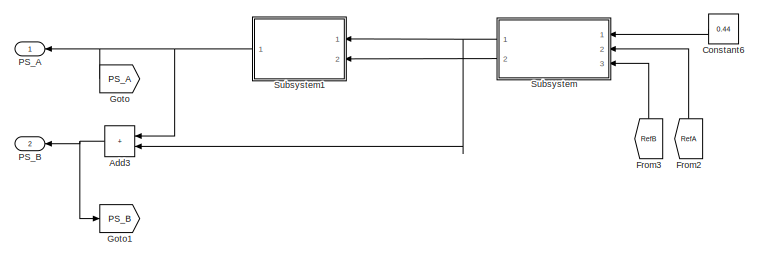
[diagram: root canvas - part 1/5, top center region]
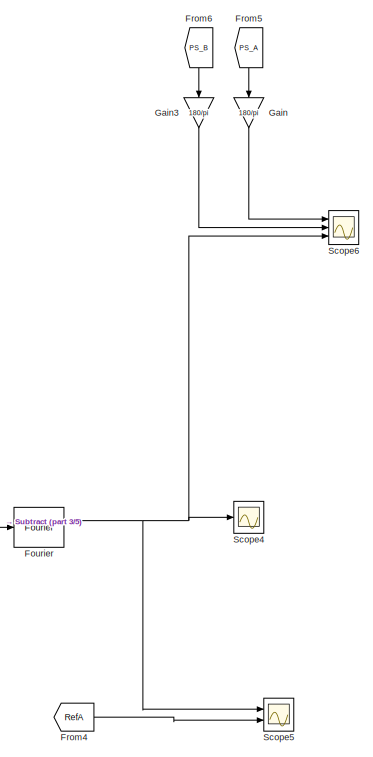
[diagram: root canvas - part 2/5, middle right region]
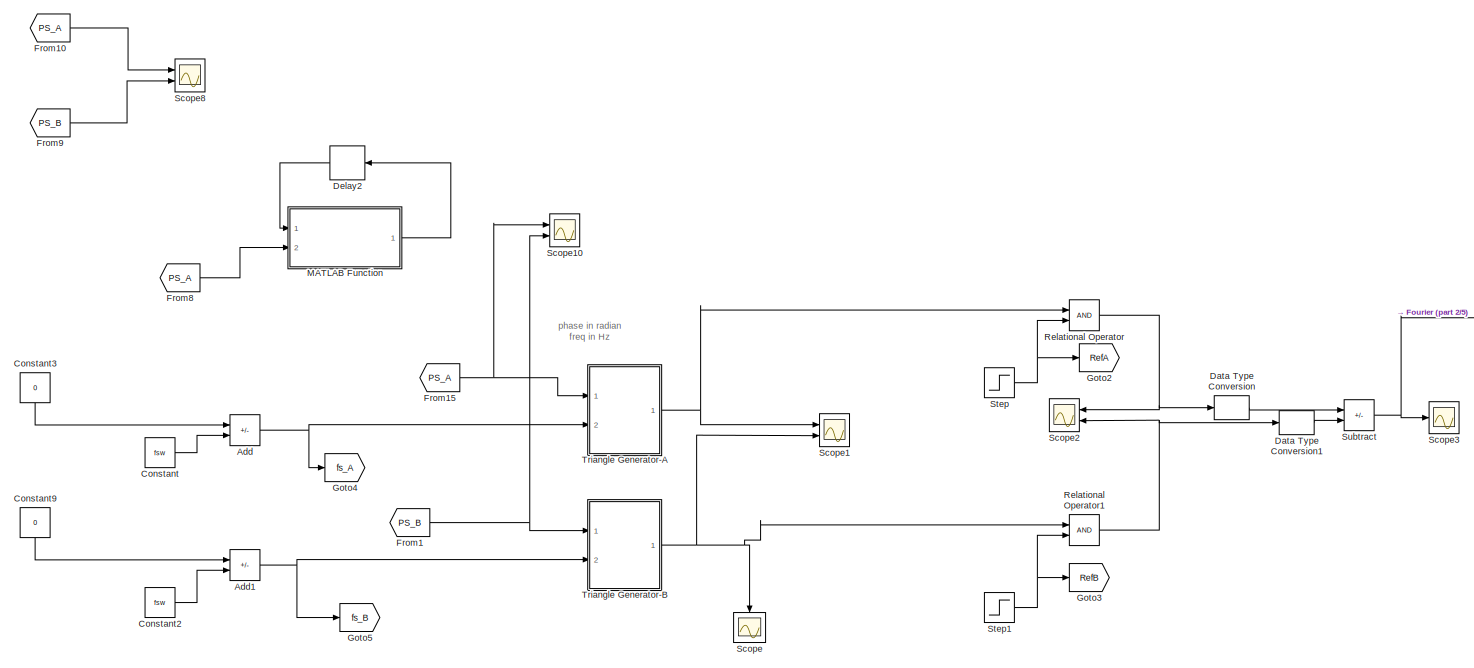
[diagram: root canvas - part 3/5, central region]
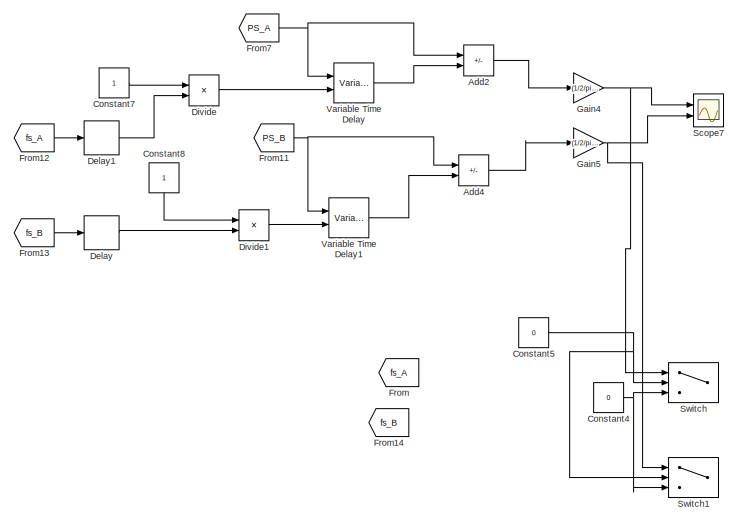
[diagram: root canvas - part 4/5, middle left region]
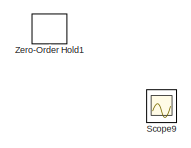
[diagram: root canvas - part 5/5, bottom center region]
MODEL slx_c30bab860ed8
KIND model
CONFIG AbsTol = auto
CONFIG EnableMultiTasking = off
CONFIG FixedStep = auto
CONFIG InitFcn = fsw=10e3;\nma=0.50;\nffund=100;
CONFIG MaxStep = 1e-7
CONFIG MinStep = auto
CONFIG RelTol = 1e-6
CONFIG SampleTimeConstraint = Unconstrained
CONFIG SolverName = VariableStepAuto
CONFIG StartTime = 0.0
CONFIG StopTime = 20/fsw
BLOCK [Sum] Add
  IconShape = rectangular
  Inputs = -+
  Ports = [2, 1]
BLOCK [Sum] Add1
  IconShape = rectangular
  Inputs = -+
  Ports = [2, 1]
BLOCK [Sum] Add2
  Commented = on
  IconShape = rectangular
  Inputs = +-
  Ports = [2, 1]
BLOCK [Sum] Add3
  IconShape = rectangular
  NameLocation = top
  Ports = [2, 1]
BLOCK [Sum] Add4
  Commented = on
  IconShape = rectangular
  Inputs = +-
  Ports = [2, 1]
BLOCK [Constant] Constant
  Value = fsw
BLOCK [Constant] Constant2
  Value = fsw
BLOCK [Constant] Constant3
  NameLocation = left
  Value = 0
BLOCK [Constant] Constant4
  Commented = on
  Value = 0
BLOCK [Constant] Constant5
  Commented = on
  Value = 0
BLOCK [Constant] Constant6
  NameLocation = top
  Value = 0.44
BLOCK [Constant] Constant7
  Commented = on
BLOCK [Constant] Constant8
  Commented = on
  NameLocation = left
BLOCK [Constant] Constant9
  NameLocation = left
  Value = 0
BLOCK [DataTypeConversion] Data Type Conversion
  RndMeth = Floor
  SaturateOnIntegerOverflow = off
BLOCK [DataTypeConversion] Data Type Conversion1
  RndMeth = Floor
  SaturateOnIntegerOverflow = off
BLOCK [Delay] Delay
  Commented = on
  InputPortMap = u0
  Ports = [1, 1]
BLOCK [Delay] Delay1
  Commented = on
  InputPortMap = u0
  Ports = [1, 1]
BLOCK [Delay] Delay2
  Commented = on
  DelayLength = 1
  InputPortMap = u0
  NameLocation = top
  Ports = [1, 1]
BLOCK [Product] Divide
  Commented = on
  Inputs = */
  Ports = [2, 1]
BLOCK [Product] Divide1
  Commented = on
  Inputs = */
  Ports = [2, 1]
BLOCK [Reference] Fourier  REF=spsFourierLib/Fourier
  Ports = [1, 2]
  SourceBlock = spsFourierLib/Fourier
  SourceProductBaseCode = PS
  SourceType = Fourier
BLOCK [From] From
  GotoTag = fs_A
BLOCK [From] From1
  GotoTag = PS_B
BLOCK [From] From10
  GotoTag = PS_A
BLOCK [From] From11
  Commented = on
  GotoTag = PS_B
BLOCK [From] From12
  Commented = on
  GotoTag = fs_A
BLOCK [From] From13
  Commented = on
  GotoTag = fs_B
BLOCK [From] From14
  GotoTag = fs_B
BLOCK [From] From15
  GotoTag = PS_A
BLOCK [From] From2
  GotoTag = RefA
  NameLocation = right
BLOCK [From] From3
  GotoTag = RefB
  NameLocation = right
BLOCK [From] From4
  GotoTag = RefA
BLOCK [From] From5
  GotoTag = PS_A
  NameLocation = left
BLOCK [From] From6
  GotoTag = PS_B
  NameLocation = left
BLOCK [From] From7
  Commented = on
  GotoTag = PS_A
BLOCK [From] From8
  Commented = on
  GotoTag = PS_A
BLOCK [From] From9
  GotoTag = PS_B
BLOCK [Gain] Gain
  Gain = 180/pi
  NameLocation = left
BLOCK [Gain] Gain3
  Gain = 180/pi
  NameLocation = left
BLOCK [Gain] Gain4
  Commented = on
  Gain = (1/2/pi)*fsw
BLOCK [Gain] Gain5
  Commented = on
  Gain = (1/2/pi)*fsw
BLOCK [Goto] Goto
  GotoTag = PS_A
BLOCK [Goto] Goto1
  GotoTag = PS_B
BLOCK [Goto] Goto2
  GotoTag = RefA
BLOCK [Goto] Goto3
  GotoTag = RefB
BLOCK [Goto] Goto4
  GotoTag = fs_A
BLOCK [Goto] Goto5
  GotoTag = fs_B
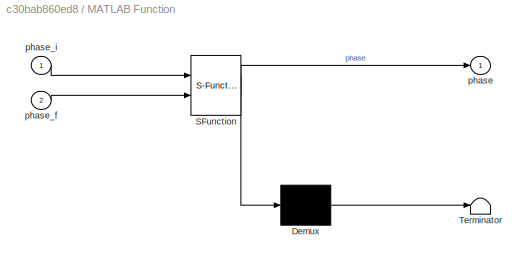
BLOCK [SubSystem] MATLAB Function
  Commented = on
  ErrorFcn = Stateflow.Translate.translate
  PermitHierarchicalResolution = ExplicitOnly
  Ports = [2, 1]
  RequestExecContextInheritance = off
  SFBlockType = MATLAB Function
  TreatAsAtomicUnit = on
BLOCK [Demux] MATLAB Function/ Demux 
  Outputs = 1
  Ports = [1, 1]
BLOCK [S-Function] MATLAB Function/ SFunction 
  EnableBusSupport = on
  FunctionName = sf_sfun
  PortCounts = [2 2]
  Ports = [2, 2]
  SFcnIsStateOwnerBlock = off
  SFunctionDeploymentMode = off
  Tag = Stateflow S-Function 2
BLOCK [Terminator] MATLAB Function/ Terminator 
BLOCK [Outport] MATLAB Function/phase
BLOCK [Inport] MATLAB Function/phase_f
  Port = 2
BLOCK [Inport] MATLAB Function/phase_i
BLOCK [Outport] PS_A
  NameLocation = top
BLOCK [Outport] PS_B
  NameLocation = top
  Port = 2
BLOCK [RelationalOperator] Relational Operator
  InputSameDT = off
  OutDataTypeStr = boolean
  Ports = [2, 1]
  RndMeth = Simplest
BLOCK [RelationalOperator] Relational Operator1
  InputSameDT = off
  OutDataTypeStr = boolean
  Ports = [2, 1]
  RndMeth = Simplest
BLOCK [Scope] Scope
  Floating = off
  NameLocation = left
  NumInputPorts = 1
  Ports = [1]
  ScopeSpecificationString = Simulink.scopes.TimeScopeBlockCfg('CurrentConfiguration', extmgr.ConfigurationSet(extmgr.Configuration('Core','General UI',true),extmgr.Configuration('Core','Source UI',true),extmgr.Configuration('Sources','WiredSimulink',true,'DataLoggingVariableName','ScopeData1'),extmgr.Configuration('Visuals','Time Domain',true,'SerializedDisplays',{struct('MinYLimReal','-1.24943','MaxYLimReal','1.24994','YLab...<+1479ch>
BLOCK [Scope] Scope1
  Floating = off
  NumInputPorts = 2
  Ports = [2]
  ScopeSpecificationString = Simulink.scopes.TimeScopeBlockCfg('CurrentConfiguration', extmgr.ConfigurationSet(extmgr.Configuration('Core','General UI',true),extmgr.Configuration('Core','Source UI',true),extmgr.Configuration('Sources','WiredSimulink',true,'DataLoggingVariableName','ScopeData2'),extmgr.Configuration('Visuals','Time Domain',true,'SerializedDisplays',{struct('MinYLimReal','-1.24968','MaxYLimReal','1.24996','YLab...<+1502ch>
BLOCK [Scope] Scope10
  Floating = off
  NumInputPorts = 2
  Ports = [2]
  ScopeSpecificationString = Simulink.scopes.TimeScopeBlockCfg('CurrentConfiguration', extmgr.ConfigurationSet(extmgr.Configuration('Core','General UI',true),extmgr.Configuration('Core','Source UI',true),extmgr.Configuration('Sources','WiredSimulink',true,'DataLoggingVariableName','ScopeData4'),extmgr.Configuration('Visuals','Time Domain',true,'SerializedDisplays',{struct('MinYLimReal','0.68485','MaxYLimReal','2.45675','YLabe...<+1428ch>
BLOCK [Scope] Scope2
  Floating = off
  NameLocation = top
  NumInputPorts = 2
  Ports = [2]
  ScopeSpecificationString = Simulink.scopes.TimeScopeBlockCfg('CurrentConfiguration', extmgr.ConfigurationSet(extmgr.Configuration('Core','General UI',true),extmgr.Configuration('Core','Source UI',true),extmgr.Configuration('Sources','WiredSimulink',true,'DataLoggingVariableName','ScopeData3'),extmgr.Configuration('Visuals','Time Domain',true,'SerializedDisplays',{struct('MinYLimReal','-0.125','MaxYLimReal','1.125','YLabelRe...<+2096ch>
BLOCK [Scope] Scope3
  Floating = off
  NumInputPorts = 1
  Ports = [1]
  ScopeSpecificationString = Simulink.scopes.TimeScopeBlockCfg('CurrentConfiguration', extmgr.ConfigurationSet(extmgr.Configuration('Core','General UI',true),extmgr.Configuration('Core','Source UI',true),extmgr.Configuration('Sources','WiredSimulink',true,'DataLoggingVariableName','VAB','DataLogging',true),extmgr.Configuration('Visuals','Time Domain',true,'SerializedDisplays',{struct('MinYLimReal','-1.25','MaxYLimReal','1.25'...<+1454ch>
BLOCK [Scope] Scope4
  Floating = off
  NumInputPorts = 1
  Ports = [1]
  ScopeSpecificationString = Simulink.scopes.TimeScopeBlockCfg('CurrentConfiguration', extmgr.ConfigurationSet(extmgr.Configuration('Core','General UI',true),extmgr.Configuration('Core','Source UI',true),extmgr.Configuration('Sources','WiredSimulink',true,'DataLoggingVariableName','ScopeData5'),extmgr.Configuration('Visuals','Time Domain',true,'SerializedDisplays',{struct('MinYLimReal','-0.09192','MaxYLimReal','0.82728','YLab...<+1441ch>
BLOCK [Scope] Scope5
  Floating = off
  NumInputPorts = 2
  Ports = [2]
  ScopeSpecificationString = Simulink.scopes.TimeScopeBlockCfg('CurrentConfiguration', extmgr.ConfigurationSet(extmgr.Configuration('Core','General UI',true),extmgr.Configuration('Core','Source UI',true),extmgr.Configuration('Sources','WiredSimulink',true,'DataLoggingVariableName','ScopeData8'),extmgr.Configuration('Visuals','Time Domain',true,'SerializedDisplays',{struct('MinYLimReal','-0.09192','MaxYLimReal','0.82728','YLab...<+1375ch>
BLOCK [Scope] Scope6
  Floating = off
  NumInputPorts = 3
  Ports = [3]
  ScopeSpecificationString = Simulink.scopes.TimeScopeBlockCfg('CurrentConfiguration', extmgr.ConfigurationSet(extmgr.Configuration('Core','General UI',true),extmgr.Configuration('Core','Source UI',true),extmgr.Configuration('Sources','WiredSimulink',true,'DataLoggingVariableName','ScopeData9'),extmgr.Configuration('Visuals','Time Domain',true,'SerializedDisplays',{struct('MinYLimReal','60.36874','MaxYLimReal','61.37018','YLa...<+2795ch>
BLOCK [Scope] Scope7
  Commented = on
  Floating = off
  NumInputPorts = 2
  Ports = [2]
  ScopeSpecificationString = Simulink.scopes.TimeScopeBlockCfg('CurrentConfiguration', extmgr.ConfigurationSet(extmgr.Configuration('Core','General UI',true),extmgr.Configuration('Core','Source UI',true),extmgr.Configuration('Sources','WiredSimulink',true,'DataLoggingVariableName','ScopeData10'),extmgr.Configuration('Visuals','Time Domain',true,'SerializedDisplays',{struct('MinYLimReal','-1328.18519','MaxYLimReal','2700.15806...<+2073ch>
BLOCK [Scope] Scope8
  Floating = off
  NumInputPorts = 2
  Ports = [2]
  ScopeSpecificationString = Simulink.scopes.TimeScopeBlockCfg('CurrentConfiguration', extmgr.ConfigurationSet(extmgr.Configuration('Core','General UI',true),extmgr.Configuration('Core','Source UI',true),extmgr.Configuration('Sources','WiredSimulink',true,'DataLoggingVariableName','ScopeData11'),extmgr.Configuration('Visuals','Time Domain',true,'SerializedDisplays',{struct('MinYLimReal','0.68485','MaxYLimReal','2.45675','YLab...<+1375ch>
BLOCK [Scope] Scope9
  Floating = off
  NumInputPorts = 2
  Ports = [2]
  ScopeSpecificationString = Simulink.scopes.TimeScopeBlockCfg('CurrentConfiguration', extmgr.ConfigurationSet(extmgr.Configuration('Core','General UI',true),extmgr.Configuration('Core','Source UI',true),extmgr.Configuration('Sources','WiredSimulink',true,'DataLoggingVariableName','ScopeData12'),extmgr.Configuration('Visuals','Time Domain',true,'SerializedDisplays',{struct('MinYLimReal','7156.64628','MaxYLimReal','10953.50592...<+2182ch>
BLOCK [Step] Step
  After = 0.25
  Before = 0.5
  SampleTime = 0
  Time = 5/fsw
BLOCK [Step] Step1
  After = 0.5
  Before = 0.25
  SampleTime = 0
  Time = 5/fsw
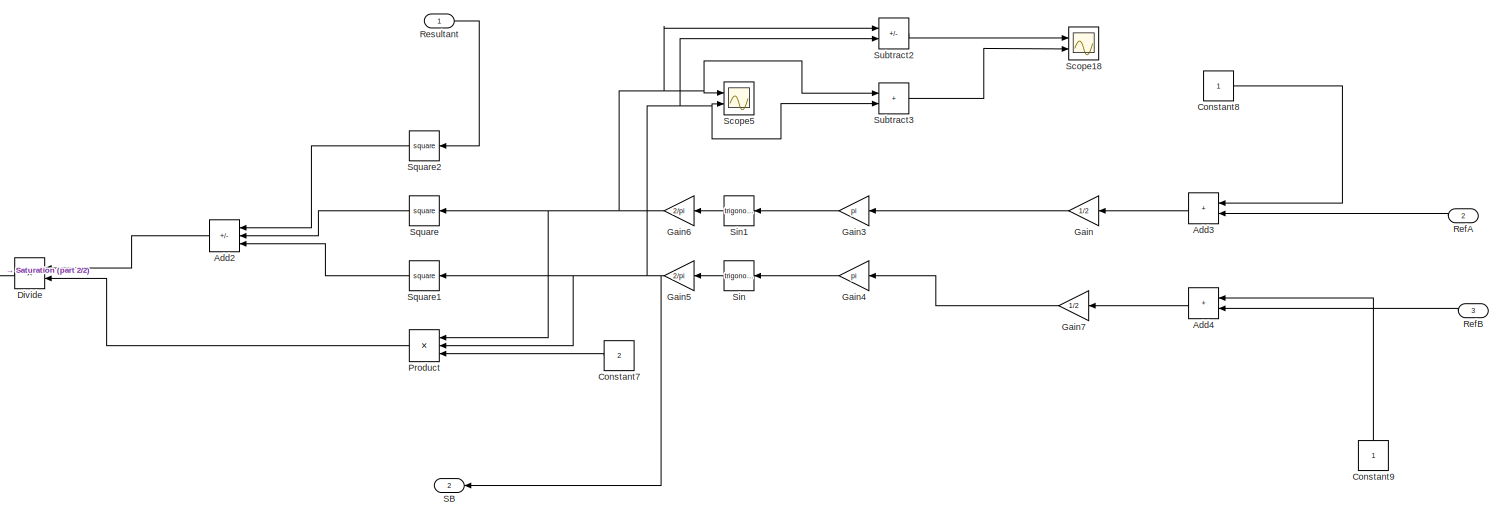
[diagram: Subsystem - part 1/2, most of the canvas]
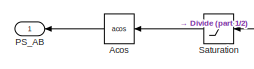
[diagram: Subsystem - part 2/2, middle left region]
BLOCK [SubSystem] Subsystem
  NameLocation = top
  Ports = [3, 2]
  RequestExecContextInheritance = off
BLOCK [Trigonometry] Subsystem/Acos
  NameLocation = top
  Operator = acos
  Ports = [1, 1]
BLOCK [Sum] Subsystem/Add2
  IconShape = rectangular
  Inputs = -++
  NameLocation = top
  Ports = [3, 1]
BLOCK [Sum] Subsystem/Add3
  IconShape = rectangular
  NameLocation = top
  Ports = [2, 1]
BLOCK [Sum] Subsystem/Add4
  IconShape = rectangular
  NameLocation = top
  Ports = [2, 1]
BLOCK [Constant] Subsystem/Constant7
  NameLocation = top
  Value = 2
BLOCK [Constant] Subsystem/Constant8
BLOCK [Constant] Subsystem/Constant9
  NameLocation = right
BLOCK [Product] Subsystem/Divide
  Inputs = */
  NameLocation = top
  Ports = [2, 1]
BLOCK [Gain] Subsystem/Gain
  Gain = 1/2
  NameLocation = top
BLOCK [Gain] Subsystem/Gain3
  Gain = pi
  NameLocation = top
BLOCK [Gain] Subsystem/Gain4
  Gain = pi
  NameLocation = top
BLOCK [Gain] Subsystem/Gain5
  Gain = 2/pi
  NameLocation = top
BLOCK [Gain] Subsystem/Gain6
  Gain = 2/pi
  NameLocation = top
BLOCK [Gain] Subsystem/Gain7
  Gain = 1/2
  NameLocation = top
BLOCK [Outport] Subsystem/PS_AB
  NameLocation = top
BLOCK [Product] Subsystem/Product
  Inputs = 3
  NameLocation = top
  Ports = [3, 1]
BLOCK [Inport] Subsystem/RefA
  NameLocation = top
  Port = 2
BLOCK [Inport] Subsystem/RefB
  NameLocation = top
  Port = 3
BLOCK [Inport] Subsystem/Resultant
BLOCK [Outport] Subsystem/SB
  NameLocation = top
  Port = 2
BLOCK [Saturate] Subsystem/Saturation
  LowerLimit = -1
  NameLocation = top
  UpperLimit = 1
BLOCK [Scope] Subsystem/Scope18
  Floating = off
  NumInputPorts = 2
  Ports = [2]
  ScopeSpecificationString = Simulink.scopes.TimeScopeBlockCfg('CurrentConfiguration', extmgr.ConfigurationSet(extmgr.Configuration('Core','General UI',true),extmgr.Configuration('Core','Source UI',true),extmgr.Configuration('Sources','WiredSimulink',true,'DataLoggingVariableName','ScopeData6'),extmgr.Configuration('Visuals','Time Domain',true,'SerializedDisplays',{struct('MinYLimReal','-0.60162','MaxYLimReal','1.17784','YLab...<+1453ch>
BLOCK [Scope] Subsystem/Scope5
  Floating = off
  NumInputPorts = 2
  Ports = [2]
  ScopeSpecificationString = Simulink.scopes.TimeScopeBlockCfg('CurrentConfiguration', extmgr.ConfigurationSet(extmgr.Configuration('Core','General UI',true),extmgr.Configuration('Core','Source UI',true),extmgr.Configuration('Sources','WiredSimulink',true,'DataLoggingVariableName','ScopeData7'),extmgr.Configuration('Visuals','Time Domain',true,'SerializedDisplays',{struct('MinYLimReal','0.14174','MaxYLimReal','0.69161','YLabe...<+1445ch>
BLOCK [Trigonometry] Subsystem/Sin
  NameLocation = top
  Ports = [1, 1]
BLOCK [Trigonometry] Subsystem/Sin1
  NameLocation = top
  Ports = [1, 1]
BLOCK [Math] Subsystem/Square
  NameLocation = top
  Operator = square
  Ports = [1, 1]
BLOCK [Math] Subsystem/Square1
  NameLocation = top
  Operator = square
  Ports = [1, 1]
BLOCK [Math] Subsystem/Square2
  NameLocation = top
  Operator = square
  Ports = [1, 1]
BLOCK [Sum] Subsystem/Subtract2
  IconShape = rectangular
  Inputs = +-
  Ports = [2, 1]
BLOCK [Sum] Subsystem/Subtract3
  IconShape = rectangular
  Ports = [2, 1]
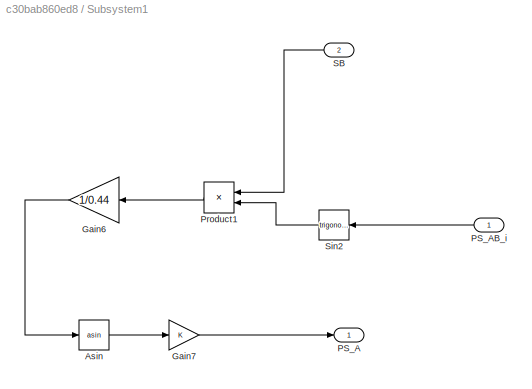
BLOCK [SubSystem] Subsystem1
  NameLocation = top
  Ports = [2, 1]
  RequestExecContextInheritance = off
BLOCK [Trigonometry] Subsystem1/Asin
  Operator = asin
  Ports = [1, 1]
BLOCK [Gain] Subsystem1/Gain6
  Gain = 1/0.44
  NameLocation = top
BLOCK [Gain] Subsystem1/Gain7
BLOCK [Outport] Subsystem1/PS_A
BLOCK [Inport] Subsystem1/PS_AB_i
  NameLocation = top
BLOCK [Product] Subsystem1/Product1
  NameLocation = top
  Ports = [2, 1]
BLOCK [Inport] Subsystem1/SB
  NameLocation = top
  Port = 2
BLOCK [Trigonometry] Subsystem1/Sin2
  NameLocation = top
  Ports = [1, 1]
BLOCK [Sum] Subtract
  IconShape = rectangular
  Inputs = +-
  Ports = [2, 1]
BLOCK [Switch] Switch
  Commented = on
  Criteria = u2 > Threshold
  InputSameDT = off
  SaturateOnIntegerOverflow = off
  Threshold = 5
BLOCK [Switch] Switch1
  Commented = on
  Criteria = u2 > Threshold
  InputSameDT = off
  SaturateOnIntegerOverflow = off
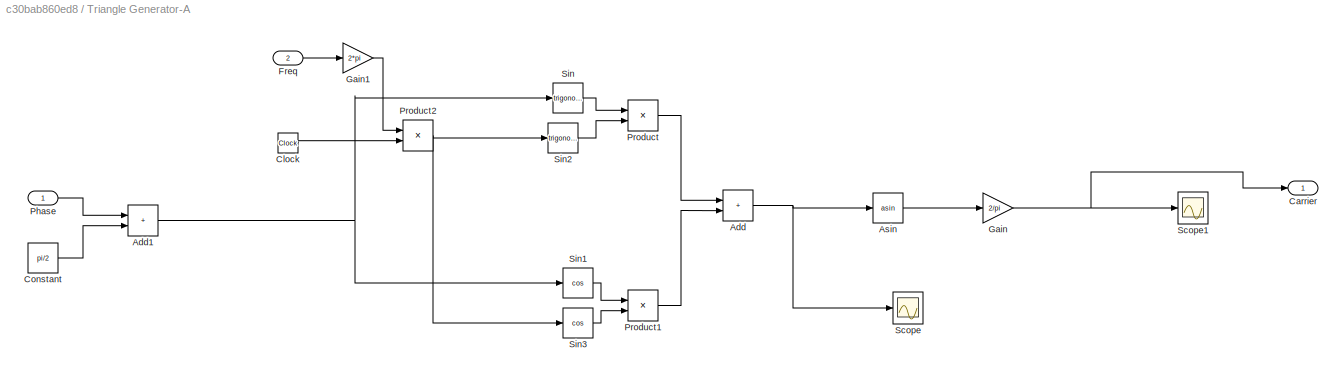
BLOCK [SubSystem] Triangle Generator-A
  Ports = [2, 1]
  RequestExecContextInheritance = off
BLOCK [Sum] Triangle Generator-A/Add
  IconShape = rectangular
  Ports = [2, 1]
BLOCK [Sum] Triangle Generator-A/Add1
  IconShape = rectangular
  Ports = [2, 1]
BLOCK [Trigonometry] Triangle Generator-A/Asin
  Operator = asin
  Ports = [1, 1]
BLOCK [Outport] Triangle Generator-A/Carrier
BLOCK [Clock] Triangle Generator-A/Clock
BLOCK [Constant] Triangle Generator-A/Constant
  Value = pi/2
BLOCK [Inport] Triangle Generator-A/Freq
  Port = 2
BLOCK [Gain] Triangle Generator-A/Gain
  Gain = 2/pi
BLOCK [Gain] Triangle Generator-A/Gain1
  Gain = 2*pi
BLOCK [Inport] Triangle Generator-A/Phase
BLOCK [Product] Triangle Generator-A/Product
  Ports = [2, 1]
BLOCK [Product] Triangle Generator-A/Product1
  Ports = [2, 1]
BLOCK [Product] Triangle Generator-A/Product2
  Ports = [2, 1]
BLOCK [Scope] Triangle Generator-A/Scope
  Floating = off
  NumInputPorts = 1
  Ports = [1]
  ScopeSpecificationString = Simulink.scopes.TimeScopeBlockCfg('CurrentConfiguration', extmgr.ConfigurationSet(extmgr.Configuration('Core','General UI',true),extmgr.Configuration('Core','Source UI',true),extmgr.Configuration('Sources','WiredSimulink',true),extmgr.Configuration('Visuals','Time Domain',true,'SerializedDisplays',{struct('MinYLimReal','-1.25','MaxYLimReal','1.25','YLabelReal','','MinYLimMag','0.00000','MaxYLimMag...<+1354ch>
BLOCK [Scope] Triangle Generator-A/Scope1
  Floating = off
  NumInputPorts = 1
  Ports = [1]
  ScopeSpecificationString = Simulink.scopes.TimeScopeBlockCfg('CurrentConfiguration', extmgr.ConfigurationSet(extmgr.Configuration('Core','General UI',true),extmgr.Configuration('Core','Source UI',true),extmgr.Configuration('Sources','WiredSimulink',true,'DataLoggingVariableName','ScopeData1'),extmgr.Configuration('Visuals','Time Domain',true,'SerializedDisplays',{struct('MinYLimReal','-0.99988','MaxYLimReal','1.00257','YLab...<+1436ch>
BLOCK [Trigonometry] Triangle Generator-A/Sin
  Ports = [1, 1]
BLOCK [Trigonometry] Triangle Generator-A/Sin1
  Operator = cos
  Ports = [1, 1]
BLOCK [Trigonometry] Triangle Generator-A/Sin2
  Ports = [1, 1]
BLOCK [Trigonometry] Triangle Generator-A/Sin3
  Operator = cos
  Ports = [1, 1]
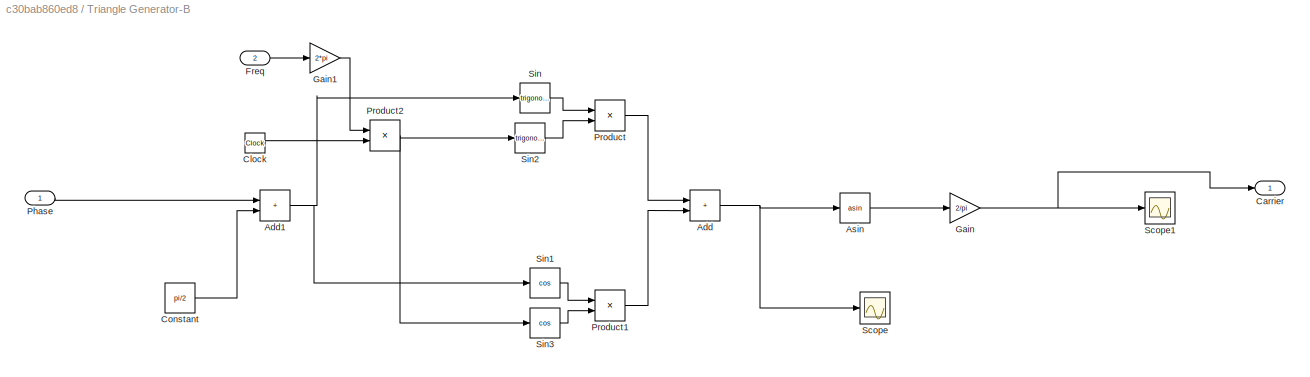
BLOCK [SubSystem] Triangle Generator-B
  Ports = [2, 1]
  RequestExecContextInheritance = off
BLOCK [Sum] Triangle Generator-B/Add
  IconShape = rectangular
  Ports = [2, 1]
BLOCK [Sum] Triangle Generator-B/Add1
  IconShape = rectangular
  Ports = [2, 1]
BLOCK [Trigonometry] Triangle Generator-B/Asin
  Operator = asin
  Ports = [1, 1]
BLOCK [Outport] Triangle Generator-B/Carrier
BLOCK [Clock] Triangle Generator-B/Clock
BLOCK [Constant] Triangle Generator-B/Constant
  Value = pi/2
BLOCK [Inport] Triangle Generator-B/Freq
  Port = 2
BLOCK [Gain] Triangle Generator-B/Gain
  Gain = 2/pi
BLOCK [Gain] Triangle Generator-B/Gain1
  Gain = 2*pi
BLOCK [Inport] Triangle Generator-B/Phase
BLOCK [Product] Triangle Generator-B/Product
  Ports = [2, 1]
BLOCK [Product] Triangle Generator-B/Product1
  Ports = [2, 1]
BLOCK [Product] Triangle Generator-B/Product2
  Ports = [2, 1]
BLOCK [Scope] Triangle Generator-B/Scope
  Floating = off
  NumInputPorts = 1
  Ports = [1]
  ScopeSpecificationString = Simulink.scopes.TimeScopeBlockCfg('CurrentConfiguration', extmgr.ConfigurationSet(extmgr.Configuration('Core','General UI',true),extmgr.Configuration('Core','Source UI',true),extmgr.Configuration('Sources','WiredSimulink',true),extmgr.Configuration('Visuals','Time Domain',true,'SerializedDisplays',{struct('MinYLimReal','-1.25','MaxYLimReal','1.08265','YLabelReal','','MinYLimMag','0.00000','MaxYLim...<+1360ch>
BLOCK [Scope] Triangle Generator-B/Scope1
  Floating = off
  NumInputPorts = 1
  Ports = [1]
  ScopeSpecificationString = Simulink.scopes.TimeScopeBlockCfg('CurrentConfiguration', extmgr.ConfigurationSet(extmgr.Configuration('Core','General UI',true),extmgr.Configuration('Core','Source UI',true),extmgr.Configuration('Sources','WiredSimulink',true,'DataLoggingVariableName','ScopeData1'),extmgr.Configuration('Visuals','Time Domain',true,'SerializedDisplays',{struct('MinYLimReal','-0.96344','MaxYLimReal','1.21757','YLab...<+1436ch>
BLOCK [Trigonometry] Triangle Generator-B/Sin
  Ports = [1, 1]
BLOCK [Trigonometry] Triangle Generator-B/Sin1
  Operator = cos
  Ports = [1, 1]
BLOCK [Trigonometry] Triangle Generator-B/Sin2
  Ports = [1, 1]
BLOCK [Trigonometry] Triangle Generator-B/Sin3
  Operator = cos
  Ports = [1, 1]
BLOCK [VariableTransportDelay] Variable Time Delay
  Commented = on
  MaximumDelay = 10
  Ports = [2, 1]
BLOCK [VariableTransportDelay] Variable Time Delay1
  Commented = on
  MaximumDelay = 10
  Ports = [2, 1]
BLOCK [ZeroOrderHold] Zero-Order Hold1
  SampleTime = 1/fsw
ANNOTATION (root): phase in radian freq in Hz
NET Add1:1 -> Goto5:1, Triangle Generator-B:2
LINE Add2:1 -> Gain4:1
NET Add3:1 -> Goto1:1, PS_B:1
LINE Add4:1 -> Gain5:1
NET Add:1 -> Goto4:1, Triangle Generator-A:2
LINE Constant2:1 -> Add1:2
LINE Constant3:1 -> Add:1
NET Constant4:1 -> Switch1:3, Switch:3
NET Constant5:1 -> Switch1:2, Switch:2
LINE Constant6:1 -> Subsystem:1
LINE Constant7:1 -> Divide:1
LINE Constant8:1 -> Divide1:1
LINE Constant9:1 -> Add1:1
LINE Constant:1 -> Add:2
LINE Data Type Conversion1:1 -> Subtract:2
LINE Data Type Conversion:1 -> Subtract:1
LINE Delay1:1 -> Divide:2
LINE Delay2:1 -> MATLAB Function:1
LINE Delay:1 -> Divide1:2
LINE Divide1:1 -> Variable Time Delay1:2
LINE Divide:1 -> Variable Time Delay:2
NET Fourier:1 -> Scope4:1, Scope5:1, Scope6:3
LINE From10:1 -> Scope8:1
NET From11:1 -> Add4:1, Variable Time Delay1:1
LINE From12:1 -> Delay1:1
LINE From13:1 -> Delay:1
NET From15:1 -> Scope10:1, Triangle Generator-A:1
NET From1:1 -> Scope10:2, Triangle Generator-B:1
LINE From2:1 -> Subsystem:2
LINE From3:1 -> Subsystem:3
LINE From4:1 -> Scope5:2
LINE From5:1 -> Gain:1
LINE From6:1 -> Gain3:1
NET From7:1 -> Add2:1, Variable Time Delay:1
LINE From8:1 -> MATLAB Function:2
LINE From9:1 -> Scope8:2
LINE Gain3:1 -> Scope6:2
NET Gain4:1 -> Scope7:1, Switch:1
NET Gain5:1 -> Scope7:2, Switch1:1
LINE Gain:1 -> Scope6:1
LINE MATLAB Function:1 -> Delay2:1
NET Relational Operator1:1 -> Data Type Conversion1:1, Scope2:2
NET Relational Operator:1 -> Data Type Conversion:1, Scope2:1
NET Step1:1 -> Goto3:1, Relational Operator1:2
NET Step:1 -> Goto2:1, Relational Operator:2
LINE Subsystem/Acos:1 -> Subsystem/PS_AB:1
LINE Subsystem/Add2:1 -> Subsystem/Divide:1
LINE Subsystem/Add3:1 -> Subsystem/Gain:1
LINE Subsystem/Add4:1 -> Subsystem/Gain7:1
LINE Subsystem/Constant7:1 -> Subsystem/Product:3
LINE Subsystem/Constant8:1 -> Subsystem/Add3:1
LINE Subsystem/Constant9:1 -> Subsystem/Add4:1
LINE Subsystem/Divide:1 -> Subsystem/Saturation:1
LINE Subsystem/Gain3:1 -> Subsystem/Sin1:1
LINE Subsystem/Gain4:1 -> Subsystem/Sin:1
NET Subsystem/Gain5:1 -> Subsystem/Product:2, Subsystem/SB:1, Subsystem/Scope5:2, Subsystem/Square1:1, Subsystem/Subtract2:2, Subsystem/Subtract3:2
NET Subsystem/Gain6:1 -> Subsystem/Product:1, Subsystem/Scope5:1, Subsystem/Square:1, Subsystem/Subtract2:1, Subsystem/Subtract3:1
LINE Subsystem/Gain7:1 -> Subsystem/Gain4:1
LINE Subsystem/Gain:1 -> Subsystem/Gain3:1
LINE Subsystem/Product:1 -> Subsystem/Divide:2
LINE Subsystem/RefA:1 -> Subsystem/Add3:2
LINE Subsystem/RefB:1 -> Subsystem/Add4:2
LINE Subsystem/Resultant:1 -> Subsystem/Square2:1
LINE Subsystem/Saturation:1 -> Subsystem/Acos:1
LINE Subsystem/Sin1:1 -> Subsystem/Gain6:1
LINE Subsystem/Sin:1 -> Subsystem/Gain5:1
LINE Subsystem/Square1:1 -> Subsystem/Add2:3
LINE Subsystem/Square2:1 -> Subsystem/Add2:1
LINE Subsystem/Square:1 -> Subsystem/Add2:2
LINE Subsystem/Subtract2:1 -> Subsystem/Scope18:1
LINE Subsystem/Subtract3:1 -> Subsystem/Scope18:2
LINE Subsystem1/Asin:1 -> Subsystem1/Gain7:1
LINE Subsystem1/Gain6:1 -> Subsystem1/Asin:1
LINE Subsystem1/Gain7:1 -> Subsystem1/PS_A:1
LINE Subsystem1/PS_AB_i:1 -> Subsystem1/Sin2:1
LINE Subsystem1/Product1:1 -> Subsystem1/Gain6:1
LINE Subsystem1/SB:1 -> Subsystem1/Product1:1
LINE Subsystem1/Sin2:1 -> Subsystem1/Product1:2
NET Subsystem1:1 -> Add3:1, Goto:1, PS_A:1
NET Subsystem:1 -> Add3:2, Subsystem1:1
LINE Subsystem:2 -> Subsystem1:2
NET Subtract:1 -> Fourier:1, Scope3:1
NET Triangle Generator-A/Add1:1 -> Triangle Generator-A/Sin1:1, Triangle Generator-A/Sin:1
NET Triangle Generator-A/Add:1 -> Triangle Generator-A/Asin:1, Triangle Generator-A/Scope:1
LINE Triangle Generator-A/Asin:1 -> Triangle Generator-A/Gain:1
LINE Triangle Generator-A/Clock:1 -> Triangle Generator-A/Product2:2
LINE Triangle Generator-A/Constant:1 -> Triangle Generator-A/Add1:2
LINE Triangle Generator-A/Freq:1 -> Triangle Generator-A/Gain1:1
LINE Triangle Generator-A/Gain1:1 -> Triangle Generator-A/Product2:1
NET Triangle Generator-A/Gain:1 -> Triangle Generator-A/Carrier:1, Triangle Generator-A/Scope1:1
LINE Triangle Generator-A/Phase:1 -> Triangle Generator-A/Add1:1
LINE Triangle Generator-A/Product1:1 -> Triangle Generator-A/Add:2
NET Triangle Generator-A/Product2:1 -> Triangle Generator-A/Sin2:1, Triangle Generator-A/Sin3:1
LINE Triangle Generator-A/Product:1 -> Triangle Generator-A/Add:1
LINE Triangle Generator-A/Sin1:1 -> Triangle Generator-A/Product1:1
LINE Triangle Generator-A/Sin2:1 -> Triangle Generator-A/Product:2
LINE Triangle Generator-A/Sin3:1 -> Triangle Generator-A/Product1:2
LINE Triangle Generator-A/Sin:1 -> Triangle Generator-A/Product:1
NET Triangle Generator-A:1 -> Relational Operator:1, Scope1:1
NET Triangle Generator-B/Add1:1 -> Triangle Generator-B/Sin1:1, Triangle Generator-B/Sin:1
NET Triangle Generator-B/Add:1 -> Triangle Generator-B/Asin:1, Triangle Generator-B/Scope:1
LINE Triangle Generator-B/Asin:1 -> Triangle Generator-B/Gain:1
LINE Triangle Generator-B/Clock:1 -> Triangle Generator-B/Product2:2
LINE Triangle Generator-B/Constant:1 -> Triangle Generator-B/Add1:2
LINE Triangle Generator-B/Freq:1 -> Triangle Generator-B/Gain1:1
LINE Triangle Generator-B/Gain1:1 -> Triangle Generator-B/Product2:1
NET Triangle Generator-B/Gain:1 -> Triangle Generator-B/Carrier:1, Triangle Generator-B/Scope1:1
LINE Triangle Generator-B/Phase:1 -> Triangle Generator-B/Add1:1
LINE Triangle Generator-B/Product1:1 -> Triangle Generator-B/Add:2
NET Triangle Generator-B/Product2:1 -> Triangle Generator-B/Sin2:1, Triangle Generator-B/Sin3:1
LINE Triangle Generator-B/Product:1 -> Triangle Generator-B/Add:1
LINE Triangle Generator-B/Sin1:1 -> Triangle Generator-B/Product1:1
LINE Triangle Generator-B/Sin2:1 -> Triangle Generator-B/Product:2
LINE Triangle Generator-B/Sin3:1 -> Triangle Generator-B/Product1:2
LINE Triangle Generator-B/Sin:1 -> Triangle Generator-B/Product:1
NET Triangle Generator-B:1 -> Relational Operator1:1, Scope1:2, Scope:1
LINE Variable Time Delay1:1 -> Add4:2
LINE Variable Time Delay:1 -> Add2:2
note: NET lines group one-source signal fan-out (src -> all destinations, sorted); 1:1 wires keep LINE
CHART MATLAB Function states=1 transitions=1
  STATE_LABEL 'eML_blk_kernel()'
  STATE_LABEL 'SCRIPT:\nfunction phase  = fcn(phase_i,phase_f)\n\nphase= phase_i + (phase_f-phase_i)/5;\n\n'
CHART  states=0 transitions=0
